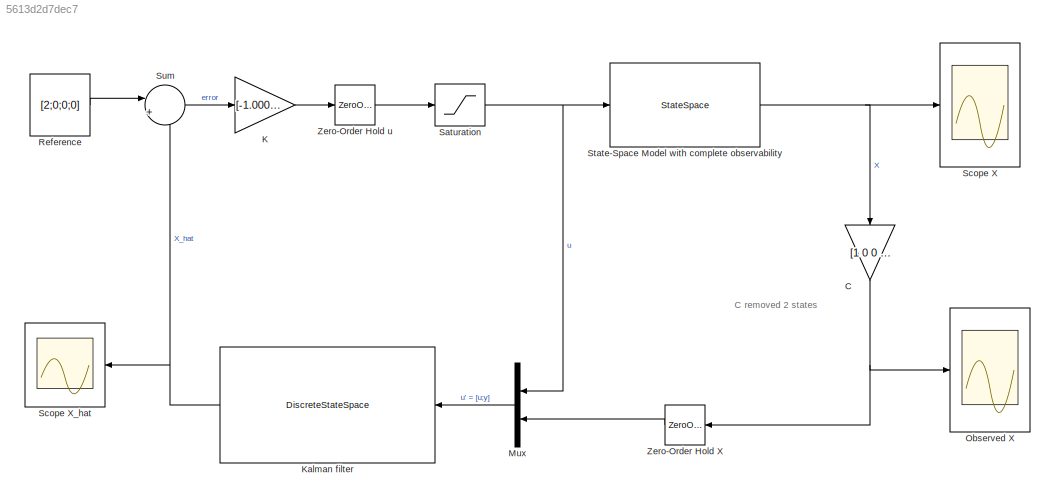
MODEL slx_5613d2d7dec7
KIND model
CONFIG AbsTol = auto
CONFIG EnableMultiTasking = off
CONFIG FixedStep = auto
CONFIG MaxStep = auto
CONFIG MinStep = auto
CONFIG RelTol = 1e-3
CONFIG SampleTimeConstraint = Unconstrained
CONFIG Solver = VariableStepAuto
CONFIG SolverName = VariableStepAuto
CONFIG StartTime = 0.0
CONFIG StopTime = 10
BLOCK [Gain] C
  Gain = [1 0 0 0; 0 0 1 0]
  Multiplication = Matrix(K*u) (u vector)
  OutDataTypeStr = Inherit: Inherit via internal rule
  ParamDataTypeStr = Inherit: Inherit via internal rule
  SaturateOnIntegerOverflow = off
BLOCK [Gain] K
  Gain = [-1.0000   -1.7726  -57.3506  -10.9466]
  Multiplication = Matrix(K*u) (u vector)
  OutDataTypeStr = Inherit: Inherit via internal rule
  ParamDataTypeStr = Inherit: Inherit via internal rule
  SaturateOnIntegerOverflow = off
BLOCK [DiscreteStateSpace] Kalman filter
  A = [    0.9696    0.0100    0.0007         0;\n   -0.0461    0.8959    0.0098         0;\n    0.0007         0    0.8846    0.0100;\n    0.0000    0.0431   -0.2989    0.9938]
  B = [         0    0.0304   -0.0007;\n    0.5129    0.0461   -0.0098;\n         0   -0.0007    0.1154;\n   -0.2102   -0.0000    0.6663]
  C = eye(4)
  D = zeros(4,3)
  SampleTime = 0.01
  StateIdentifier = X_hat
  X0 = [1;0;0;0]
BLOCK [Mux] Mux
  DisplayOption = bar
  Inputs = 2
  Ports = [2, 1]
BLOCK [Scope] Observed X
  NumInputPorts = 1
  Ports = [1]
  ScopeSpecificationString = Simulink.scopes.TimeScopeBlockCfg('CurrentConfiguration', extmgr.ConfigurationSet(extmgr.Configuration('Core','General UI',true),extmgr.Configuration('Core','Source UI',true),extmgr.Configuration('Sources','WiredSimulink',true,'DataLoggingVariableName','ScopeData1'),extmgr.Configuration('Visuals','Time Domain',true,'SerializedDisplays',{struct('MinYLimReal','-0.30373','MaxYLimReal','2.18973','YLab...<+1436ch>
BLOCK [Constant] Reference
  Value = [2;0;0;0]
BLOCK [Saturate] Saturation
  InputPortMap = u0
  LowerLimit = -0.8
  Ports = [1, 1]
  UpperLimit = 0.9
BLOCK [Scope] Scope X
  NumInputPorts = 1
  Ports = [1]
  ScopeSpecificationString = Simulink.scopes.TimeScopeBlockCfg('CurrentConfiguration', extmgr.ConfigurationSet(extmgr.Configuration('Core','General UI',true),extmgr.Configuration('Core','Source UI',true),extmgr.Configuration('Sources','WiredSimulink',true),extmgr.Configuration('Visuals','Time Domain',true,'SerializedDisplays',{struct('MinYLimReal','-0.68836','MaxYLimReal','2.29865','YLabelReal','','MinYLimMag','0.00000','MaxY...<+1411ch>
BLOCK [Scope] Scope X_hat
  NumInputPorts = 1
  Ports = [1]
  ScopeSpecificationString = Simulink.scopes.TimeScopeBlockCfg('CurrentConfiguration', extmgr.ConfigurationSet(extmgr.Configuration('Core','General UI',true),extmgr.Configuration('Core','Source UI',true),extmgr.Configuration('Sources','WiredSimulink',true,'DataLoggingVariableName','ScopeData1'),extmgr.Configuration('Visuals','Time Domain',true,'SerializedDisplays',{struct('MinYLimReal','-0.7116','MaxYLimReal','2.30123','YLabe...<+1491ch>
BLOCK [StateSpace] State-Space Model with complete observability
  A = [0    1.0000         0         0;\n         0  -10.4100         0         0;\n         0         0         0    1.0000;\n         0    4.3111   36.7400   -0.6249]
  B = [0;\n   51.2860;\n         0;\n  -21.0230]
  C = eye(4)
  D = [0;0;0;0]
  Ports = [1, 1]
  X0 = [1; 0; 0; 0]
BLOCK [Sum] Sum
  IconShape = round
  InputSameDT = off
  Inputs = |+-
  OutDataTypeStr = Inherit: Inherit via internal rule
  Ports = [2, 1]
  SaturateOnIntegerOverflow = off
BLOCK [ZeroOrderHold] Zero-Order Hold X
  SampleTime = 0.01
BLOCK [ZeroOrderHold] Zero-Order Hold u
  SampleTime = 0.01
ANNOTATION (root): C removed 2 states
NET C:1 -> Observed X:1, Zero-Order Hold X:1
LINE K:1 -> Zero-Order Hold u:1
NET Kalman filter:1 -> Scope X_hat:1, Sum:2
LINE Mux:1 -> Kalman filter:1
LINE Reference:1 -> Sum:1
NET Saturation:1 -> Mux:1, State-Space Model with complete observability:1
NET State-Space Model with complete observability:1 -> C:1, Scope X:1
LINE Sum:1 -> K:1
LINE Zero-Order Hold X:1 -> Mux:2
LINE Zero-Order Hold u:1 -> Saturation:1
note: NET lines group one-source signal fan-out (src -> all destinations, sorted); 1:1 wires keep LINE
